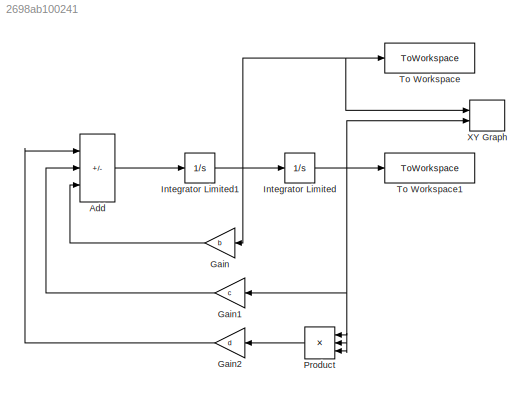
MODEL slx_2698ab100241
KIND model
CONFIG AbsTol = auto
CONFIG EnableMultiTasking = off
CONFIG FixedStep = auto
CONFIG MaxStep = auto
CONFIG MinStep = auto
CONFIG RelTol = 1e-3
CONFIG SampleTimeConstraint = Unconstrained
CONFIG SolverName = VariableStepAuto
CONFIG StartTime = 0.0
CONFIG StopTime = 10
BLOCK [Sum] Add
  IconShape = rectangular
  Inputs = ---
  Ports = [3, 1]
BLOCK [Gain] Gain
  Gain = b
  NameLocation = top
BLOCK [Gain] Gain1
  Gain = c
BLOCK [Gain] Gain2
  Gain = d
BLOCK [Integrator] Integrator Limited
  InitialCondition = x0(1)
  LimitOutput = on
  LowerSaturationLimit = -2
  Ports = [1, 1]
  UpperSaturationLimit = 2
BLOCK [Integrator] Integrator Limited1
  InitialCondition = x0(2)
  LimitOutput = on
  LowerSaturationLimit = -2
  Ports = [1, 1]
  UpperSaturationLimit = 2
BLOCK [Product] Product
  Inputs = 3
  Ports = [3, 1]
BLOCK [ToWorkspace] To Workspace
  FixptAsFi = on
  MaxDataPoints = inf
  Ports = [1]
  SampleTime = -1
  VariableName = x1
BLOCK [ToWorkspace] To Workspace1
  FixptAsFi = on
  MaxDataPoints = inf
  Ports = [1]
  SampleTime = -1
  VariableName = x2
BLOCK [Record] XY Graph
  CompatibilityTag = XY
  FileSettingsInternal = {"entries":[{"content":{"excelSettings":{"content":{},"type":"Streamout.ExcelSettings"}},"type":"Streamout.FileSettingStorage","uuid":"19108948-40a7-43bf-af90-d28d5dfe90f6"}],"packageUris":["http://schema.mathworks.com/mf0/streamout_blocks/R2020a"],"version":"1.0"}
  Layout = [1 1]
  Ports = [2]
  SignalsInternal = {"entries":[{"content":{"signals":[{"content":{"blockPath":["uklad/XY Graph"],"channel":[],"dimensions":[1],"domain":"uklad/XY Graph","lineColor":"#a2142f","plots":[1],"port":1,"sid":[""],"signalID":267,"signalName":"Integrator\nLimited1"},"type":"RecordBlkView.Signal","uuid":"cd86a725-f064-4ede-a419-367942fe806c"},{"content":{"blockPath":["uklad/XY Graph"],"channel":[],"dimensions":[1],"domain":"...<+374ch>
  VisualizationBindings = {"xyplotplugin":{"info":[{"series":[{"bindingParametersList":[{"parameter":"X-Axis","signalID":267,"signalName":"Integrator\nLimited1"},{"parameter":"Y-Axis","signalID":271,"signalName":"Integrator\nLimited"}],"seriesID":50268}],"subplotID":1}]}}
LINE Add:1 -> Integrator Limited1:1
LINE Gain1:1 -> Add:2
LINE Gain2:1 -> Add:1
LINE Gain:1 -> Add:3
NET Integrator Limited1:1 -> Gain:1, Integrator Limited:1, To Workspace:1, XY Graph:1
NET Integrator Limited:1 -> Gain1:1, Product:1, Product:2, Product:3, To Workspace1:1, XY Graph:2
LINE Product:1 -> Gain2:1
note: NET lines group one-source signal fan-out (src -> all destinations, sorted); 1:1 wires keep LINE
